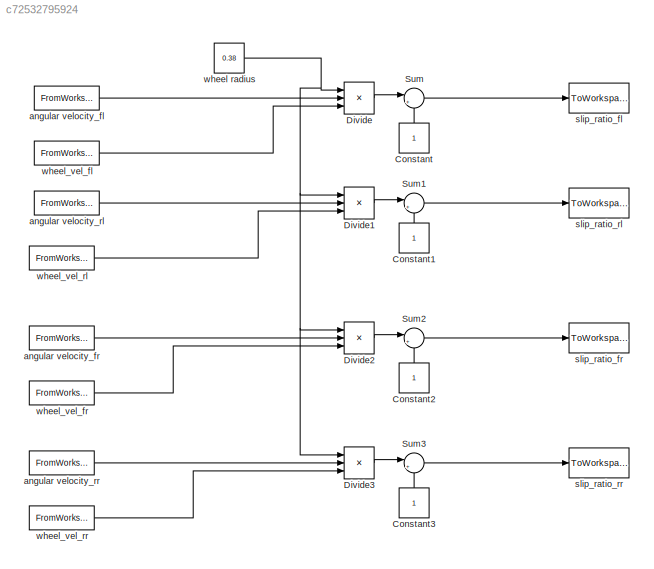
MODEL slx_c72532795924
KIND model
CONFIG AbsTol = auto
CONFIG FixedStep = auto
CONFIG MaxStep = auto
CONFIG MinStep = auto
CONFIG RelTol = 1e-3
CONFIG SampleTimeConstraint = Unconstrained
CONFIG Solver = ode45
CONFIG SolverMode = Auto
CONFIG SolverName = ode45
CONFIG StartTime = 0.0
CONFIG StopTime = 10.0
BLOCK [Constant] Constant
BLOCK [Constant] Constant1
BLOCK [Constant] Constant2
BLOCK [Constant] Constant3
BLOCK [Product] Divide
  InputSameDT = off
  Inputs = **/
  OutDataTypeStr = Inherit: Inherit via internal rule
  Ports = [3, 1]
  RndMeth = Floor
  SaturateOnIntegerOverflow = off
BLOCK [Product] Divide1
  InputSameDT = off
  Inputs = **/
  OutDataTypeStr = Inherit: Inherit via internal rule
  Ports = [3, 1]
  RndMeth = Floor
  SaturateOnIntegerOverflow = off
BLOCK [Product] Divide2
  InputSameDT = off
  Inputs = **/
  OutDataTypeStr = Inherit: Inherit via internal rule
  Ports = [3, 1]
  RndMeth = Floor
  SaturateOnIntegerOverflow = off
BLOCK [Product] Divide3
  InputSameDT = off
  Inputs = **/
  OutDataTypeStr = Inherit: Inherit via internal rule
  Ports = [3, 1]
  RndMeth = Floor
  SaturateOnIntegerOverflow = off
BLOCK [Sum] Sum
  IconShape = round
  InputSameDT = off
  Inputs = |+-
  OutDataTypeStr = Inherit: Inherit via internal rule
  Ports = [2, 1]
  SaturateOnIntegerOverflow = off
BLOCK [Sum] Sum1
  IconShape = round
  InputSameDT = off
  Inputs = |+-
  OutDataTypeStr = Inherit: Inherit via internal rule
  Ports = [2, 1]
  SaturateOnIntegerOverflow = off
BLOCK [Sum] Sum2
  IconShape = round
  InputSameDT = off
  Inputs = |+-
  OutDataTypeStr = Inherit: Inherit via internal rule
  Ports = [2, 1]
  SaturateOnIntegerOverflow = off
BLOCK [Sum] Sum3
  IconShape = round
  InputSameDT = off
  Inputs = |+-
  OutDataTypeStr = Inherit: Inherit via internal rule
  Ports = [2, 1]
  SaturateOnIntegerOverflow = off
BLOCK [FromWorkspace] angular velocity_fl
  SampleTime = 0
  VariableName = w_fl
  ZeroCross = on
BLOCK [FromWorkspace] angular velocity_fr
  SampleTime = 0
  VariableName = w_fr
  ZeroCross = on
BLOCK [FromWorkspace] angular velocity_rl
  SampleTime = 0
  VariableName = w_rl
  ZeroCross = on
BLOCK [FromWorkspace] angular velocity_rr
  SampleTime = 0
  VariableName = w_rr
  ZeroCross = on
BLOCK [ToWorkspace] slip_ratio_fl
  FixptAsFi = on
  MaxDataPoints = inf
  Ports = [1]
  SampleTime = -1
  Save2DSignal = 3-D array (concatenate along third dimension)
  SaveFormat = Timeseries
  VariableName = slip_ratio_fl
BLOCK [ToWorkspace] slip_ratio_fr
  FixptAsFi = on
  MaxDataPoints = inf
  Ports = [1]
  SampleTime = -1
  Save2DSignal = 3-D array (concatenate along third dimension)
  SaveFormat = Timeseries
  VariableName = slip_ratio_fr
BLOCK [ToWorkspace] slip_ratio_rl
  FixptAsFi = on
  MaxDataPoints = inf
  Ports = [1]
  SampleTime = -1
  Save2DSignal = 3-D array (concatenate along third dimension)
  SaveFormat = Timeseries
  VariableName = slip_ratio_rl
BLOCK [ToWorkspace] slip_ratio_rr
  FixptAsFi = on
  MaxDataPoints = inf
  Ports = [1]
  SampleTime = -1
  Save2DSignal = 3-D array (concatenate along third dimension)
  SaveFormat = Timeseries
  VariableName = slip_ratio_rr
BLOCK [Constant] wheel radius
  Value = 0.38
BLOCK [FromWorkspace] wheel_vel_fl
  SampleTime = 0
  VariableName = wheel_vel_fl
  ZeroCross = on
BLOCK [FromWorkspace] wheel_vel_fr
  SampleTime = 0
  VariableName = wheel_vel_fr
  ZeroCross = on
BLOCK [FromWorkspace] wheel_vel_rl
  SampleTime = 0
  VariableName = wheel_vel_rl
  ZeroCross = on
BLOCK [FromWorkspace] wheel_vel_rr
  SampleTime = 0
  VariableName = wheel_vel_rr
  ZeroCross = on
LINE Constant1:1 -> Sum1:2
LINE Constant2:1 -> Sum2:2
LINE Constant3:1 -> Sum3:2
LINE Constant:1 -> Sum:2
LINE Divide1:1 -> Sum1:1
LINE Divide2:1 -> Sum2:1
LINE Divide3:1 -> Sum3:1
LINE Divide:1 -> Sum:1
LINE Sum1:1 -> slip_ratio_rl:1
LINE Sum2:1 -> slip_ratio_fr:1
LINE Sum3:1 -> slip_ratio_rr:1
LINE Sum:1 -> slip_ratio_fl:1
LINE angular velocity_fl:1 -> Divide:2
LINE angular velocity_fr:1 -> Divide2:2
LINE angular velocity_rl:1 -> Divide1:2
LINE angular velocity_rr:1 -> Divide3:2
NET wheel radius:1 -> Divide1:1, Divide2:1, Divide3:1, Divide:1
LINE wheel_vel_fl:1 -> Divide:3
LINE wheel_vel_fr:1 -> Divide2:3
LINE wheel_vel_rl:1 -> Divide1:3
LINE wheel_vel_rr:1 -> Divide3:3
note: NET lines group one-source signal fan-out (src -> all destinations, sorted); 1:1 wires keep LINE
